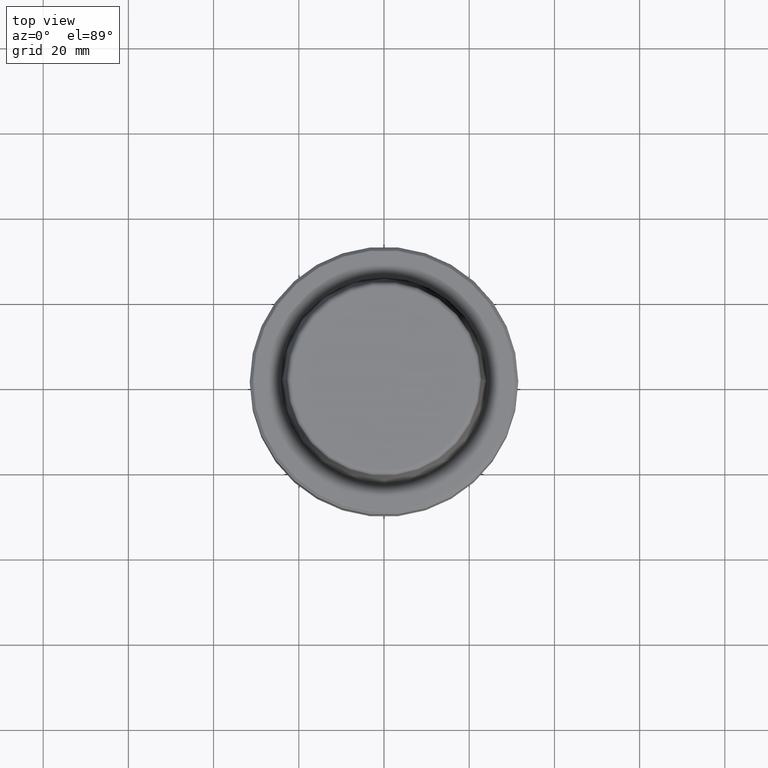
[diagram: clean part render]
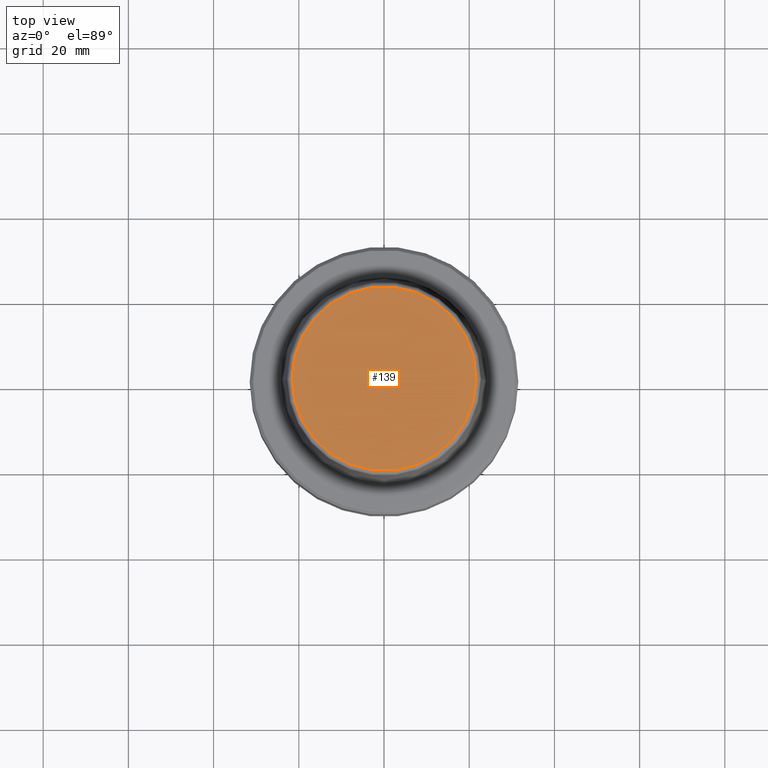
[diagram: same view with one face highlighted and labeled with its STEP entity id]
A machine part, top view. The second image highlights one B-rep face of the part: STEP entity #139.
In plain terms, the highlighted planar face has unit normal (0, 0, -1).
Its self-contained STEP definition (entity closure, byte-faithful):
#14 = DIRECTION ( 'NONE',  ( -1.000000000000000000, 0.0000000000000000000, -0.0000000000000000000 ) ) ;
#101 = CARTESIAN_POINT ( 'NONE',  ( 0.0000000000000000000, 0.0000000000000000000, 31.89999999999999900 ) ) ;
#139 = ADVANCED_FACE ( 'NONE', ( #244 ), #504, .F. ) ;
#160 = CARTESIAN_POINT ( 'NONE',  ( 21.58108272732117100, 0.0000000000000000000, 31.89999999999999900 ) ) ;
#183 = DIRECTION ( 'NONE',  ( -0.0000000000000000000, -0.0000000000000000000, 1.000000000000000000 ) ) ;
#244 = FACE_OUTER_BOUND ( 'NONE', #1242, .T. ) ;
#256 = EDGE_CURVE ( 'NONE', #1272, #678, #1093, .T. ) ;
#344 = DIRECTION ( 'NONE',  ( 1.000000000000000000, 0.0000000000000000000, 0.0000000000000000000 ) ) ;
#347 = CARTESIAN_POINT ( 'NONE',  ( -21.58108272732117100, 2.716307157494421400E-015, 31.89999999999999900 ) ) ;
#436 = DIRECTION ( 'NONE',  ( 0.0000000000000000000, 0.0000000000000000000, -1.000000000000000000 ) ) ;
#470 = AXIS2_PLACEMENT_3D ( 'NONE', #862, #183, #344 ) ;
#504 = PLANE ( 'NONE',  #854 ) ;
#508 = ORIENTED_EDGE ( 'NONE', *, *, #723, .T. ) ;
#510 = CARTESIAN_POINT ( 'NONE',  ( 0.0000000000000000000, 0.0000000000000000000, 31.89999999999999900 ) ) ;
#678 = VERTEX_POINT ( 'NONE', #160 ) ;
#723 = EDGE_CURVE ( 'NONE', #678, #1272, #733, .T. ) ;
#733 = CIRCLE ( 'NONE', #936, 21.58108272732117100 ) ;
#854 = AXIS2_PLACEMENT_3D ( 'NONE', #101, #436, #14 ) ;
#862 = CARTESIAN_POINT ( 'NONE',  ( 0.0000000000000000000, 0.0000000000000000000, 31.89999999999999900 ) ) ;
#903 = ORIENTED_EDGE ( 'NONE', *, *, #256, .T. ) ;
#913 = DIRECTION ( 'NONE',  ( -0.0000000000000000000, -0.0000000000000000000, 1.000000000000000000 ) ) ;
#936 = AXIS2_PLACEMENT_3D ( 'NONE', #510, #913, #1057 ) ;
#1057 = DIRECTION ( 'NONE',  ( 1.000000000000000000, 0.0000000000000000000, 0.0000000000000000000 ) ) ;
#1093 = CIRCLE ( 'NONE', #470, 21.58108272732117100 ) ;
#1242 = EDGE_LOOP ( 'NONE', ( #508, #903 ) ) ;
#1272 = VERTEX_POINT ( 'NONE', #347 ) ;